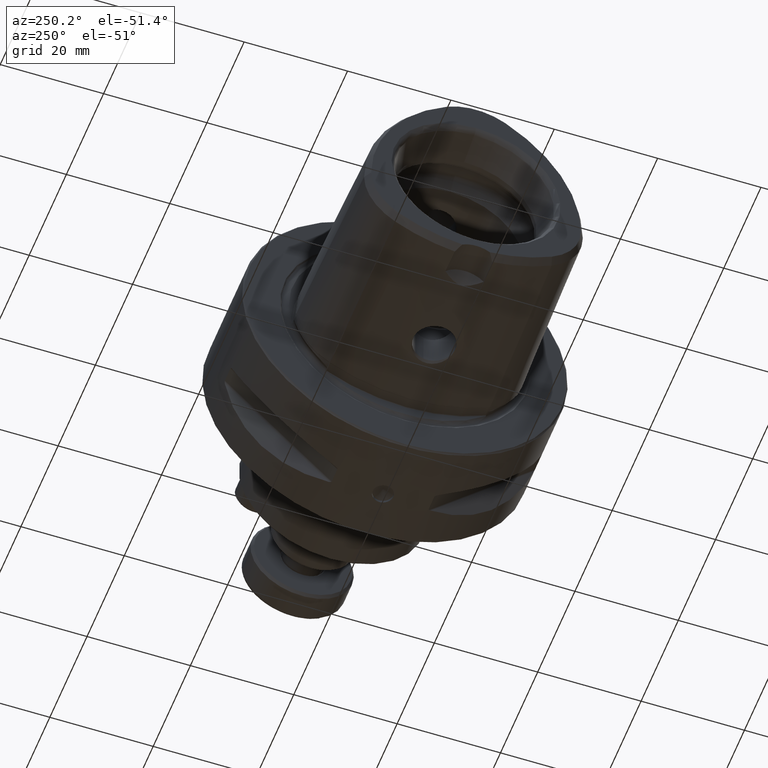
[diagram: clean part render]
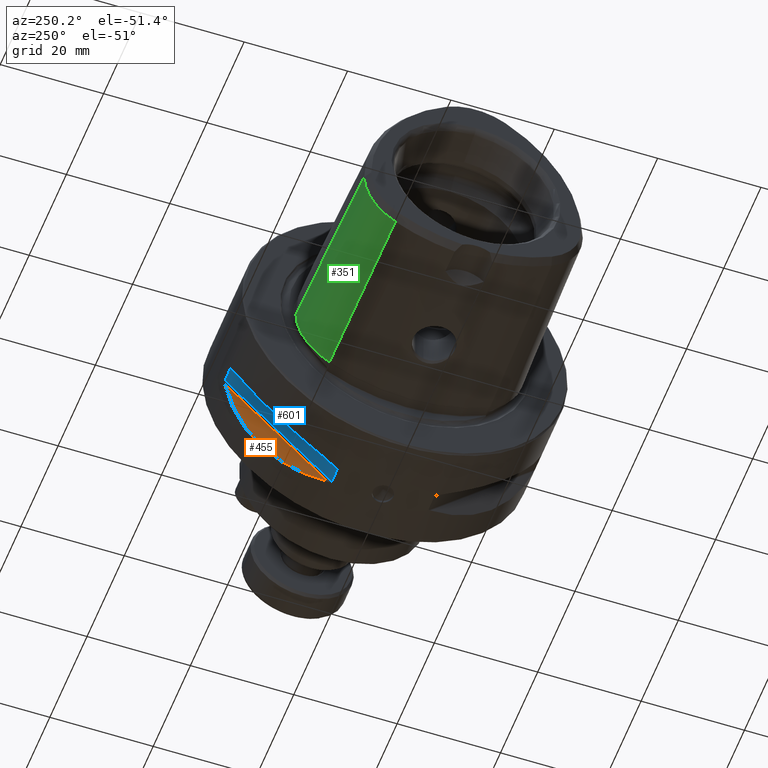
[diagram: same view with three faces highlighted in distinct colors, each labeled with its STEP entity id]
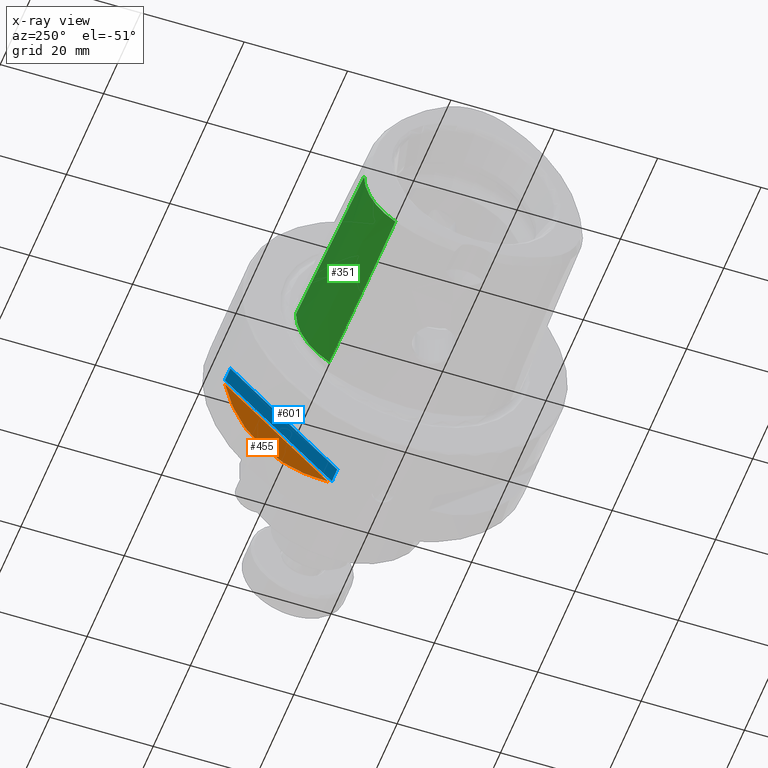
[diagram: x-ray of the same camera — body ghosted, the three highlighted faces saturated]
A machine part, auxiliary view with three faces highlighted in distinct colors.
The next image is the same camera in x-ray (body ghosted, the three faces saturated) — at least one of them is partly hidden behind the body in this view.
Their STEP definitions:

[orange] entity #455 — the highlighted planar face has unit normal (-0.866, 0.3536, -0.3536).
#455 = ADVANCED_FACE( '', ( #1006 ), #1007, .T. );
#1006 = FACE_OUTER_BOUND( '', #1740, .T. );
#1007 = PLANE( '', #1741 );
#1740 = EDGE_LOOP( '', ( #2670, #2671 ) );
#1741 = AXIS2_PLACEMENT_3D( '', #2672, #2673, #2674 );
#2670 = ORIENTED_EDGE( '', *, *, #4069, .F. );
#2671 = ORIENTED_EDGE( '', *, *, #4070, .F. );
#2672 = CARTESIAN_POINT( '', ( 13.9052558883258, 95.8589892974343, 56.0488775166317 ) );
#2673 = DIRECTION( '', ( -0.866025403784439, 0.353553390593274, -0.353553390593274 ) );
#2674 = DIRECTION( '', ( -0.377964473009227, 1.96261557335472E-017, 0.925820099772552 ) );
#4069 = EDGE_CURVE( '', #4800, #4801, #4802, .F. );
#4070 = EDGE_CURVE( '', #4801, #4800, #4803, .T. );
#4800 = VERTEX_POINT( '', #5931 );
#4801 = VERTEX_POINT( '', #5932 );
#4802 = ELLIPSE( '', #5933, 36.3730669589464, 31.5000000000000 );
#4803 = LINE( '', #5934, #5935 );
#5931 = CARTESIAN_POINT( '', ( 13.9052558883258, 9.90936932068531, -29.9007424601173 ) );
#5932 = CARTESIAN_POINT( '', ( 13.9052558883258, 29.9007424601173, -9.90936932068531 ) );
#5933 = AXIS2_PLACEMENT_3D( '', #7366, #7367, #7368 );
#5934 = CARTESIAN_POINT( '', ( 13.9052558883258, 95.8589892974343, 56.0488775166317 ) );
#5935 = VECTOR( '', #7369, 1000.00000000000 );
#7366 = CARTESIAN_POINT( '', ( -2.34715418936220, 0.000000000000000, 5.24618896808045E-015 ) );
#7367 = DIRECTION( '', ( -0.866025403784439, 0.353553390593273, -0.353553390593273 ) );
#7368 = DIRECTION( '', ( -0.500000000000000, -0.612372435695795, 0.612372435695795 ) );
#7369 = DIRECTION( '', ( 0.000000000000000, -0.707106781186548, -0.707106781186547 ) );

[blue] entity #601 — the highlighted planar face has unit normal (0, 0.7071, -0.7071).
#601 = ADVANCED_FACE( '', ( #1268 ), #1269, .T. );
#1268 = FACE_OUTER_BOUND( '', #2002, .T. );
#1269 = PLANE( '', #2003 );
#2002 = EDGE_LOOP( '', ( #3254, #3255, #3256, #3257 ) );
#2003 = AXIS2_PLACEMENT_3D( '', #3258, #3259, #3260 );
#3254 = ORIENTED_EDGE( '', *, *, #4308, .T. );
#3255 = ORIENTED_EDGE( '', *, *, #4256, .T. );
#3256 = ORIENTED_EDGE( '', *, *, #4309, .F. );
#3257 = ORIENTED_EDGE( '', *, *, #4259, .F. );
#3258 = CARTESIAN_POINT( '', ( 10.2390816789716, 95.6822126021377, 56.2256542119283 ) );
#3259 = DIRECTION( '', ( 0.000000000000000, 0.707106781186547, -0.707106781186548 ) );
#3260 = DIRECTION( '', ( 0.000000000000000, 0.707106781186548, 0.707106781186547 ) );
#4256 = EDGE_CURVE( '', #5076, #5074, #5077, .T. );
#4259 = EDGE_CURVE( '', #5079, #5081, #5082, .T. );
#4308 = EDGE_CURVE( '', #5079, #5076, #5144, .T. );
#4309 = EDGE_CURVE( '', #5081, #5074, #5145, .T. );
#5074 = VERTEX_POINT( '', #6660 );
#5076 = VERTEX_POINT( '', #6669 );
#5077 = LINE( '', #6670, #6671 );
#5079 = VERTEX_POINT( '', #6680 );
#5081 = VERTEX_POINT( '', #6689 );
#5082 = LINE( '', #6690, #6691 );
#5144 = LINE( '', #6771, #6772 );
#5145 = LINE( '', #6773, #6774 );
#6660 = CARTESIAN_POINT( '', ( 10.5277568135664, 9.38806643133624, -30.0684919588731 ) );
#6669 = CARTESIAN_POINT( '', ( 13.4722431864335, 9.38806643133622, -30.0684919588732 ) );
#6670 = CARTESIAN_POINT( '', ( -0.100000000000002, 9.38806643133624, -30.0684919588731 ) );
#6671 = VECTOR( '', #7567, 1000.00000000000 );
#6680 = CARTESIAN_POINT( '', ( 13.4722431864335, 30.0684919588732, -9.38806643133623 ) );
#6689 = CARTESIAN_POINT( '', ( 10.5277568135664, 30.0684919588732, -9.38806643133622 ) );
#6690 = CARTESIAN_POINT( '', ( -0.100000000000004, 30.0684919588732, -9.38806643133622 ) );
#6691 = VECTOR( '', #7568, 1000.00000000000 );
#6771 = CARTESIAN_POINT( '', ( 13.4722431864335, 95.6822126021377, 56.2256542119283 ) );
#6772 = VECTOR( '', #7619, 1000.00000000000 );
#6773 = CARTESIAN_POINT( '', ( 10.5277568135664, 95.6822126021377, 56.2256542119283 ) );
#6774 = VECTOR( '', #7620, 1000.00000000000 );
#7567 = DIRECTION( '', ( -1.00000000000000, 0.000000000000000, -6.95237284268055E-017 ) );
#7568 = DIRECTION( '', ( -1.00000000000000, 0.000000000000000, -6.95237284268055E-017 ) );
#7619 = DIRECTION( '', ( 0.000000000000000, -0.707106781186548, -0.707106781186547 ) );
#7620 = DIRECTION( '', ( 0.000000000000000, -0.707106781186548, -0.707106781186547 ) );

[green] entity #351 — the highlighted conical surface has half-angle 1.432 deg.
#351 = ADVANCED_FACE( '', ( #822 ), #823, .T. );
#822 = FACE_OUTER_BOUND( '', #1556, .T. );
#823 = CONICAL_SURFACE( '', #1557, 12.9502577388071, 0.0249969933592226 );
#1556 = EDGE_LOOP( '', ( #2289, #2290, #2291, #2292 ) );
#1557 = AXIS2_PLACEMENT_3D( '', #2293, #2294, #2295 );
#2289 = ORIENTED_EDGE( '', *, *, #3866, .F. );
#2290 = ORIENTED_EDGE( '', *, *, #3867, .T. );
#2291 = ORIENTED_EDGE( '', *, *, #3868, .T. );
#2292 = ORIENTED_EDGE( '', *, *, #3869, .T. );
#2293 = CARTESIAN_POINT( '', ( -3.00000000000000, 9.04974226119300, -5.22487113059656 ) );
#2294 = DIRECTION( '', ( 1.00000000000000, -0.000000000000000, 0.000000000000000 ) );
#2295 = DIRECTION( '', ( 0.000000000000000, 0.000000000000000, -1.00000000000000 ) );
#3866 = EDGE_CURVE( '', #4462, #4463, #4464, .T. );
#3867 = EDGE_CURVE( '', #4462, #4465, #4466, .T. );
#3868 = EDGE_CURVE( '', #4465, #4467, #4468, .T. );
#3869 = EDGE_CURVE( '', #4467, #4463, #4469, .T. );
#4462 = VERTEX_POINT( '', #5324 );
#4463 = VERTEX_POINT( '', #5325 );
#4464 = LINE( '', #5326, #5327 );
#4465 = VERTEX_POINT( '', #5328 );
#4466 = CIRCLE( '', #5329, 12.1106227450955 );
#4467 = VERTEX_POINT( '', #5330 );
#4468 = LINE( '', #5331, #5332 );
#4469 = CIRCLE( '', #5333, 12.9682444691399 );
#5324 = CARTESIAN_POINT( '', ( -36.5824429953531, 15.1050536337404, -15.7129780834988 ) );
#5325 = CARTESIAN_POINT( '', ( -2.28059412649900, 15.5338644957626, -16.4557002833587 ) );
#5326 = CARTESIAN_POINT( '', ( -3.00000000000000, 15.5248711305962, -16.4401233179595 ) );
#5327 = VECTOR( '', #7073, 1000.00000000000 );
#5328 = CARTESIAN_POINT( '', ( -36.5824429953531, 21.1603650062886, -5.22487113059657 ) );
#5329 = AXIS2_PLACEMENT_3D( '', #7074, #7075, #7076 );
#5330 = CARTESIAN_POINT( '', ( -2.28059412649949, 22.0179867303329, -5.22487113059657 ) );
#5331 = CARTESIAN_POINT( '', ( -3.00000000000000, 22.0000000000000, -5.22487113059657 ) );
#5332 = VECTOR( '', #7077, 1000.00000000000 );
#5333 = AXIS2_PLACEMENT_3D( '', #7078, #7079, #7080 );
#7073 = DIRECTION( '', ( 0.999687591429374, 0.0124971951066739, -0.0216457768768608 ) );
#7074 = CARTESIAN_POINT( '', ( -36.5824429953531, 9.04974226119300, -5.22487113059656 ) );
#7075 = DIRECTION( '', ( 1.00000000000000, 0.000000000000000, 0.000000000000000 ) );
#7076 = DIRECTION( '', ( 0.000000000000000, 0.000000000000000, -1.00000000000000 ) );
#7077 = DIRECTION( '', ( 0.999687591429374, 0.0249943902133482, -2.34364824559621E-017 ) );
#7078 = CARTESIAN_POINT( '', ( -2.28059412649928, 9.04974226119300, -5.22487113059656 ) );
#7079 = DIRECTION( '', ( -1.00000000000000, 6.12303176911189E-017, 0.000000000000000 ) );
#7080 = DIRECTION( '', ( -6.12303176911189E-017, -1.00000000000000, 0.000000000000000 ) );